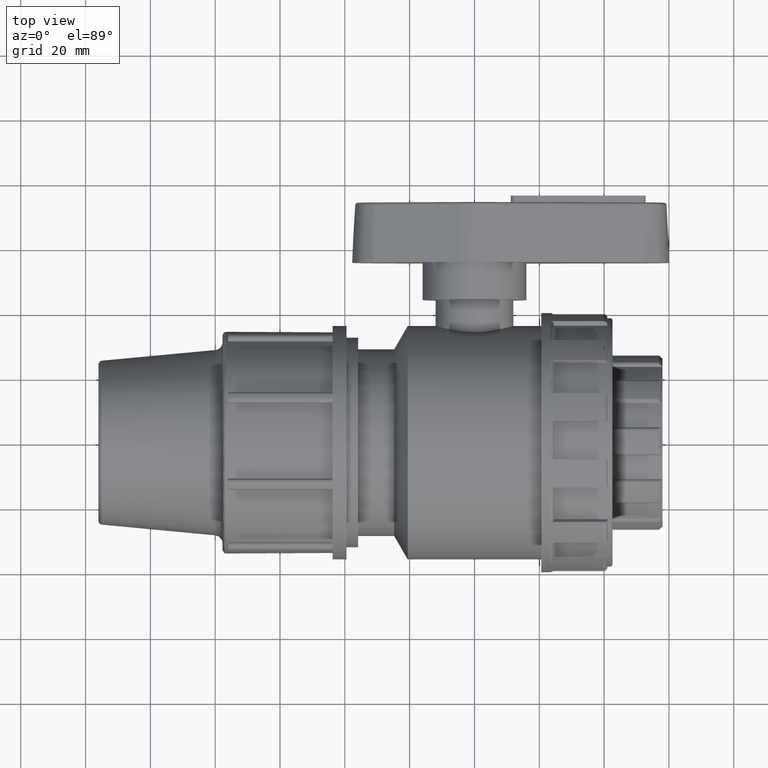
[diagram: clean part render]
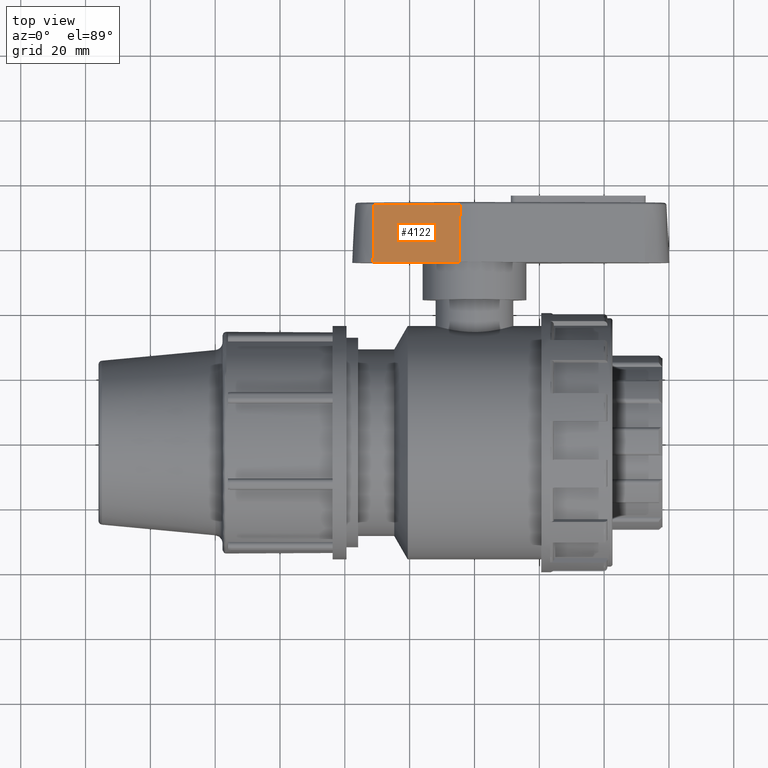
[diagram: same view with one face highlighted and labeled with its STEP entity id]
A machine part, top view. The second image highlights one B-rep face of the part: STEP entity #4122.
In plain terms, the highlighted planar face has unit normal (-0.2774, 0.0523, 0.9593).
Its self-contained STEP definition (entity closure, byte-faithful):
#149=PLANE('',#4527);
#502=FACE_OUTER_BOUND('',#760,.T.);
#760=EDGE_LOOP('',(#3339,#3340,#3341,#3342));
#995=LINE('',#7590,#1223);
#1011=LINE('',#7642,#1239);
#1013=LINE('',#7649,#1241);
#1014=LINE('',#7650,#1242);
#1223=VECTOR('',#5391,27.6665863452649);
#1239=VECTOR('',#5449,27.6665863452649);
#1241=VECTOR('',#5457,17.786107044908);
#1242=VECTOR('',#5458,17.786107044908);
#1834=VERTEX_POINT('',#7580);
#1836=VERTEX_POINT('',#7586);
#1851=VERTEX_POINT('',#7639);
#1852=VERTEX_POINT('',#7641);
#2374=EDGE_CURVE('',#1834,#1836,#995,.T.);
#2399=EDGE_CURVE('',#1852,#1851,#1011,.T.);
#2403=EDGE_CURVE('',#1834,#1852,#1013,.T.);
#2404=EDGE_CURVE('',#1836,#1851,#1014,.T.);
#3339=ORIENTED_EDGE('',*,*,#2374,.F.);
#3340=ORIENTED_EDGE('',*,*,#2403,.T.);
#3341=ORIENTED_EDGE('',*,*,#2399,.T.);
#3342=ORIENTED_EDGE('',*,*,#2404,.F.);
#4122=ADVANCED_FACE('',(#502),#149,.T.);
#4527=AXIS2_PLACEMENT_3D('',#7648,#5455,#5456);
#5391=DIRECTION('',(0.960645359210588,3.1995917888847E-16,0.277777777777778));
#5449=DIRECTION('',(0.960645359210588,3.1995917888847E-16,0.277777777777778));
#5455=DIRECTION('center_axis',(-0.277397092987382,0.0523359562429438,0.95932882813261));
#5456=DIRECTION('ref_axis',(-0.960645359210588,0.,-0.277777777777778));
#5457=DIRECTION('',(-0.0145377656230397,-0.998629534754574,0.0502762934846324));
#5458=DIRECTION('',(-0.0145377656230396,-0.998629534754574,0.0502762934846324));
#7580=CARTESIAN_POINT('',(-31.032969721306,73.2617318033515,7.72233120010937));
#7586=CARTESIAN_POINT('',(-4.45519194352825,73.2617318033515,15.4074940737941));
#7590=CARTESIAN_POINT('',(-17.7440808324171,73.2617318033515,11.5649126369517));
#7639=CARTESIAN_POINT('',(-4.71376219909341,55.5,16.301713611533));
#7641=CARTESIAN_POINT('',(-31.2915399768712,55.5,8.61655073784825));
#7642=CARTESIAN_POINT('',(-31.2915399768712,55.5,8.61655073784825));
#7648=CARTESIAN_POINT('Origin',(-31.0222222222222,74.,7.6851628736847));
#7649=CARTESIAN_POINT('',(-31.0222222222222,74.,7.68516287368471));
#7650=CARTESIAN_POINT('',(-4.44444444444446,74.,15.3703257473694));